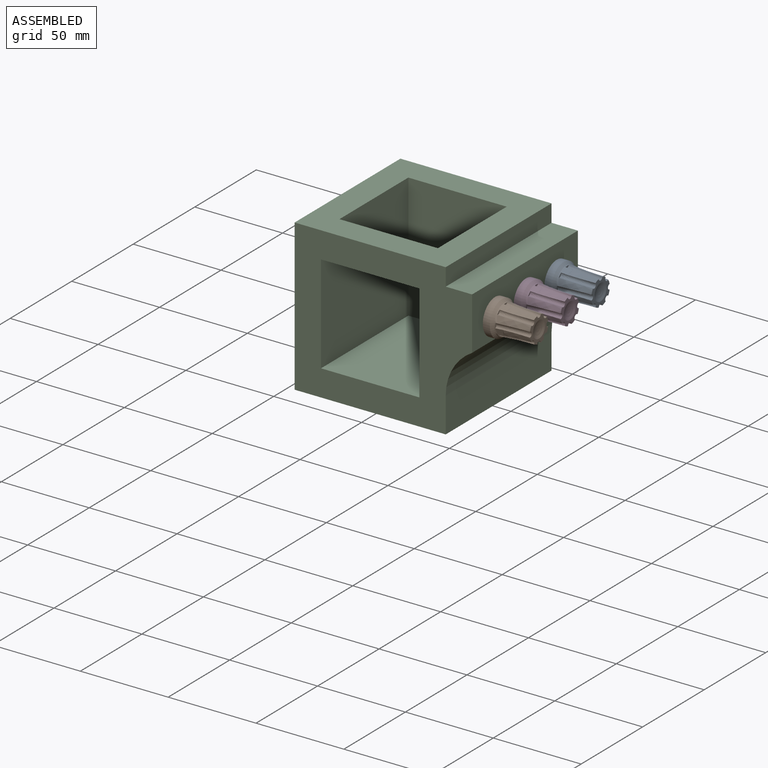
[diagram: assembled view]
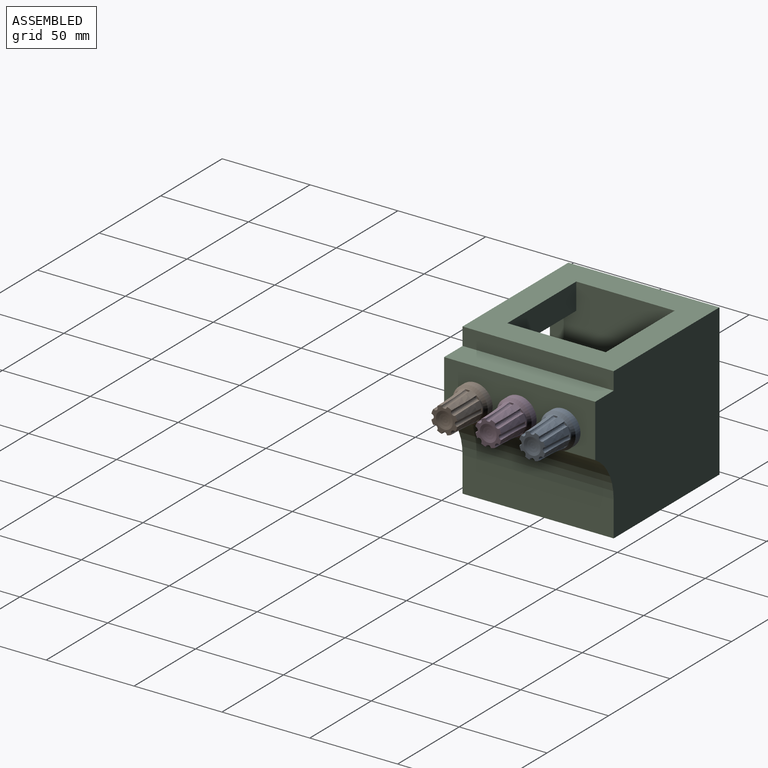
[diagram: assembled view, second angle]
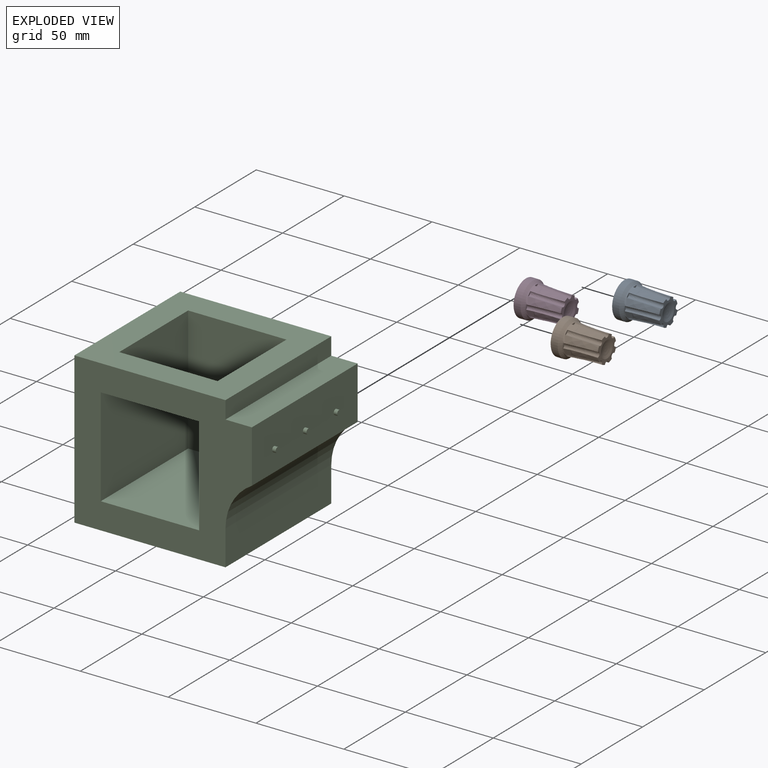
[diagram: exploded view]
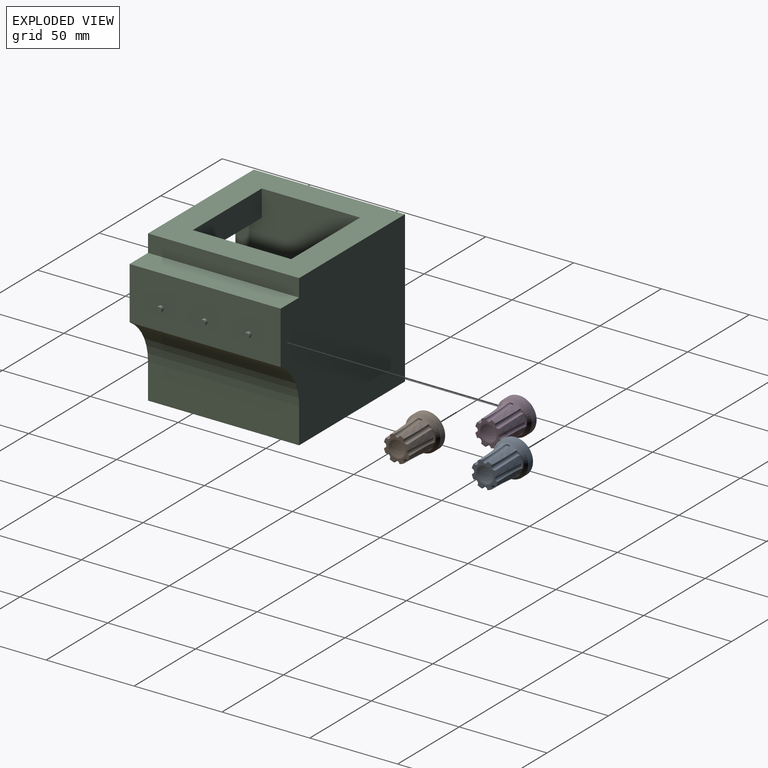
[diagram: exploded view, second angle]
ASSEMBLY  parts=4 mates=3
PART A: 26 faces, bbox 20x20x25 mm
  f0: bspline ~19.55x17.08mm, area 541.7mm2, adj f1,f2,f5,f6,f7,f8,f9,f10
  f1: bspline ~25x6.35mm, area 0mm2, adj f0,f20
  f2: plane 14.73x14.73mm, normal (0,0,1), area 77.2mm2, adj f0,f7,f9,f11,f12,f14,f16,f18
  f3: cylinder r=10mm len=20mm, axis (0,0,-1), area 251.3mm2, adj f4,f5
  f4: plane 20x20mm, normal (0,0,-1), area 307.1mm2, adj f3,f24
  f5: cone r=8mm half-angle=45deg, axis (0,0,-1), area 120.1mm2, adj f0,f3
  f6: plane 2.72x0.97mm, normal (0,0,1), area 1.9mm2, adj f0,f7
  f7: bspline ~19x2.99mm, area 74.3mm2, adj f0,f2,f6
  f8: plane 2.02x2.02mm, normal (0,0,1), area 1.9mm2, adj f0,f9
  f9: bspline ~19x3.54mm, area 74.4mm2, adj f0,f2,f8
  f10: plane 2.72x0.97mm, normal (0,0,1), area 1.9mm2, adj f0,f11,f12
  f11: bspline ~19x2.88mm, area 37.1mm2, adj f0,f2,f10,f12
  f12: bspline ~19x2.88mm, area 37.1mm2, adj f0,f2,f10,f11
  f13: plane 2.02x2.02mm, normal (0,0,1), area 1.9mm2, adj f0,f14
  f14: bspline ~19x3.54mm, area 74.4mm2, adj f0,f2,f13
  f15: plane 2.72x0.97mm, normal (0,0,1), area 1.9mm2, adj f0,f16
  f16: bspline ~19x2.99mm, area 74.3mm2, adj f0,f2,f15
  f17: plane 2.02x2.02mm, normal (0,0,1), area 1.9mm2, adj f0,f18
  f18: bspline ~19x3.54mm, area 74.4mm2, adj f0,f2,f17
  f19: plane 2.72x0.97mm, normal (0,0,1), area 1.9mm2, adj f0,f20
  f20: bspline ~19x2.99mm, area 66.9mm2, adj f0,f1,f2,f19
  f21: plane 2.02x2.02mm, normal (0,0,1), area 1.9mm2, adj f0,f22
  f22: bspline ~19x3.54mm, area 74.4mm2, adj f0,f2,f21
  f23: sphere r=15.75mm, area 74.2mm2, adj f2
  f24: cylinder r=1.5mm len=3mm, axis (0,0,-1), area 9.4mm2, adj f4,f25
  f25: plane 3x3mm, normal (0,0,-1), area 7.1mm2, adj f24
PART B: same geometry as A
PART C: 22 faces, bbox 103x86x86 mm
  f0: plane 101x86mm, normal (0,-1,0), area 4823.6mm2, adj f1,f2,f3,f5,f6,f7,f9,f11
  f1: plane 86x20mm, normal (1,0,0), area 1720mm2, adj f0,f4,f6,f15
  f2: plane 86x86mm, normal (0,0,1), area 4260mm2, adj f0,f3,f4,f5,f7,f8,f9,f10
  f3: plane 86x10mm, normal (1,0,0), area 860mm2, adj f0,f2,f4,f13
  f4: plane 101x86mm, normal (0,1,0), area 7959.6mm2, adj f1,f2,f3,f5,f6,f13,f14,f15
  f5: plane 86x86mm, normal (-1,0,0), area 7396mm2, adj f0,f2,f4,f6
  f6: plane 86x86mm, normal (0,0,-1), area 7396mm2, adj f0,f1,f4,f5
  f7: plane 71x71mm, normal (-1,0,0), area 4816mm2, adj f0,f2,f8,f10,f11,f12
  f8: plane 71x56mm, normal (0,-1,0), area 3976mm2, adj f2,f7,f9,f11
  f9: plane 71x71mm, normal (1,0,0), area 4816mm2, adj f0,f2,f8,f10,f11,f12
  f10: plane 56x15mm, normal (0,1,0), area 840mm2, adj f2,f7,f9,f12
  f11: plane 71x56mm, normal (0,0,1), area 3976mm2, adj f0,f7,f8,f9
  f12: plane 56x15mm, normal (0,0,-1), area 840mm2, adj f0,f7,f9,f10
  f13: plane 86x15mm, normal (0,0,1), area 1290mm2, adj f0,f3,f4,f14
  f14: plane 86x30.02mm, normal (1,0,0), area 2560.4mm2, adj f0,f4,f13,f15,f16,f18,f20
  f15: cylinder r=30mm len=86mm, axis (0,-1,0), area 2701.8mm2, adj f0,f1,f4,f14
  f16: cylinder r=1.5mm len=3mm, axis (-1,0,0), area 18.8mm2, adj f14,f17
  f17: plane 3x3mm, normal (1,0,0), area 7.1mm2, adj f16
  f18: cylinder r=1.5mm len=3mm, axis (-1,0,0), area 18.8mm2, adj f14,f19
  f19: plane 3x3mm, normal (1,0,0), area 7.1mm2, adj f18
  f20: cylinder r=1.5mm len=3mm, axis (-1,0,0), area 18.8mm2, adj f14,f21
  f21: plane 3x3mm, normal (1,0,0), area 7.1mm2, adj f20
PART D: same geometry as A
PLACE A rot(axis=(-0.58,0.58,-0.58),120deg) t=(58.5,25,15)mm
PLACE B rot(axis=(-0.58,0.58,-0.58),120deg) t=(58.5,-25,15)mm
PLACE C at identity fixed
PLACE D rot(axis=(-0.58,0.58,-0.58),120deg) t=(58.5,0,15)mm
MATE revolute C.f16 <-> B.f3  axis (1,0,0) through (60,-25,15)mm
MATE revolute C.f20 <-> D.f3  axis (1,0,0) through (58,0,15)mm
MATE revolute C.f18 <-> A.f3  axis (1,0,0) through (58,25,15)mm
